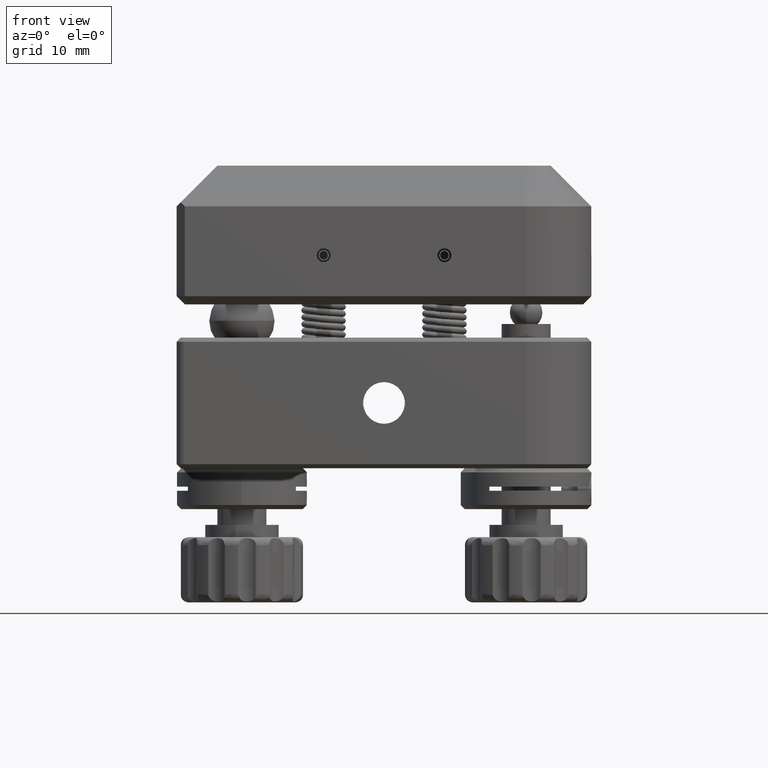
[diagram: clean part render]
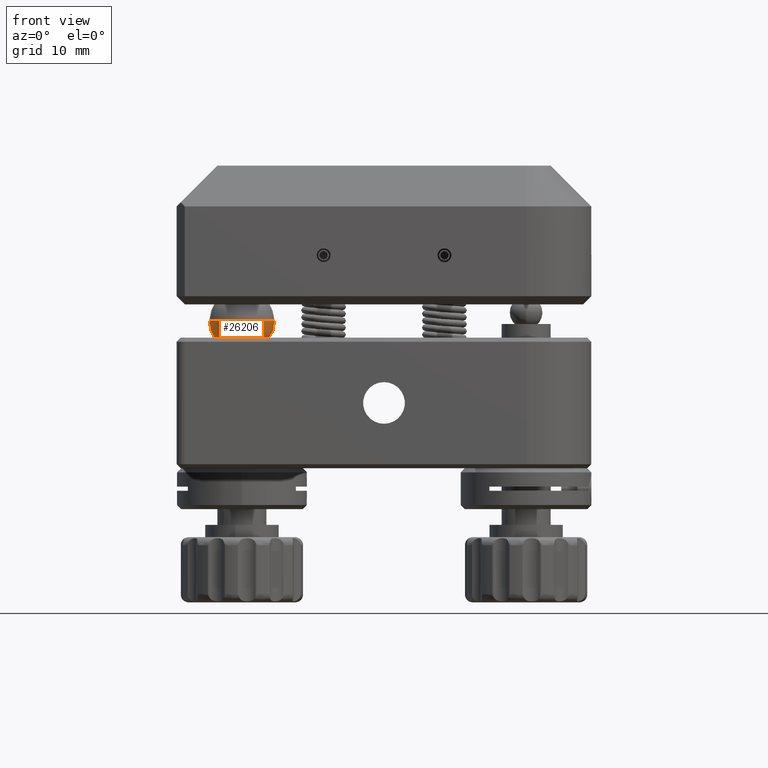
[diagram: same view with one face highlighted and labeled with its STEP entity id]
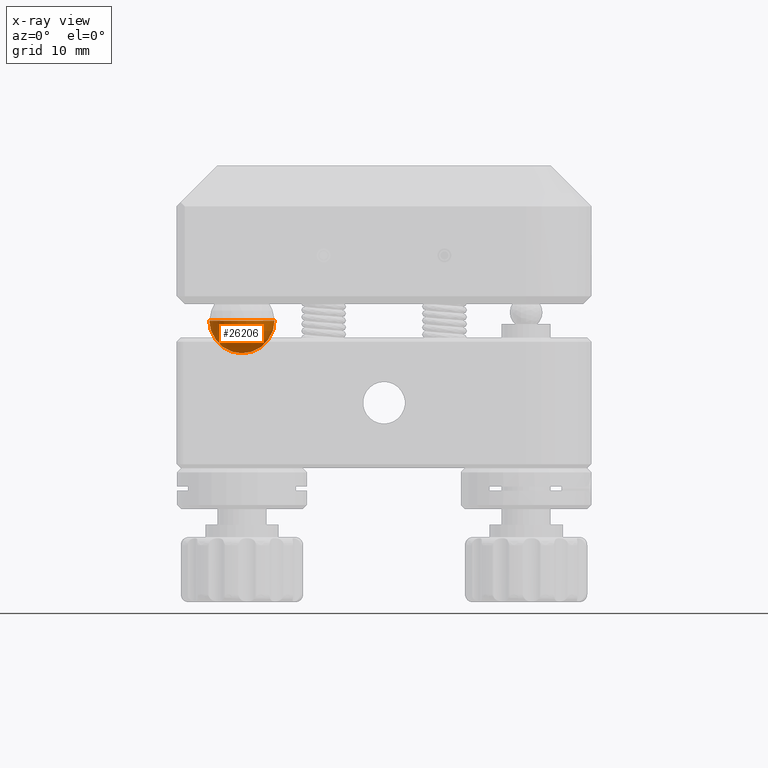
[diagram: x-ray of the same camera — body ghosted, the highlighted face saturated]
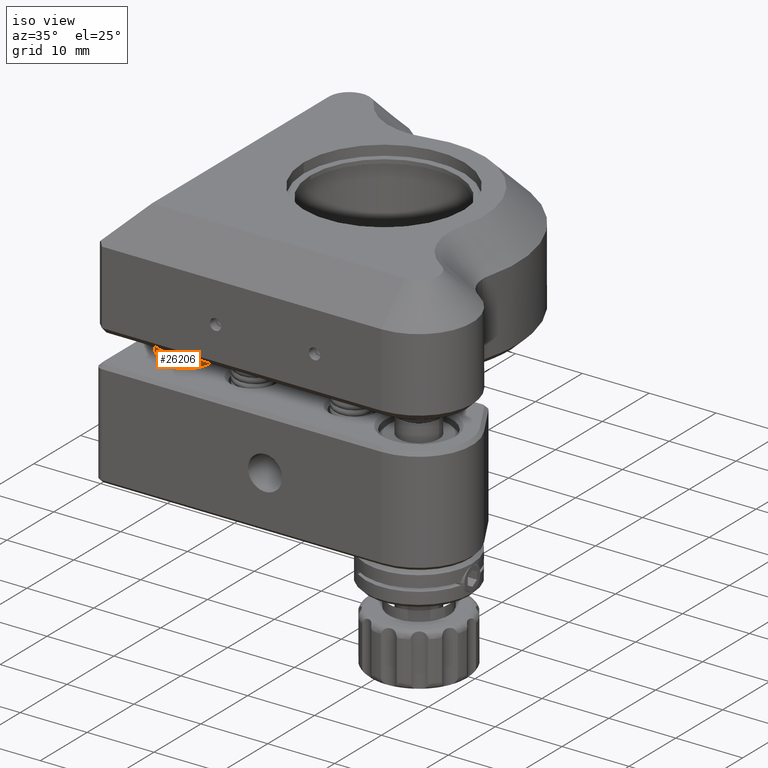
[diagram: same view with one face highlighted and labeled with its STEP entity id]
A machine part, front view. The second image highlights one B-rep face of the part: STEP entity #26206.
The next image is the same camera in x-ray: the body ghosted, the highlighted face saturated — about 0% of this face is hidden behind the body in this view.
A second angle (iso view) of the same face is appended — the face is thin or edge-on in the first view.
In plain terms, the highlighted spherical surface has radius 4 mm.
Its self-contained STEP definition (entity closure, byte-faithful):
#370 = DIRECTION ( 'NONE',  ( -9.369561891591502420E-16, -4.144134906478959242E-16, 1.000000000000000000 ) ) ;
#456 = AXIS2_PLACEMENT_3D ( 'NONE', #2564, #9783, #13660 ) ;
#1826 = DIRECTION ( 'NONE',  ( 3.035766082959412415E-15, 1.000000000000000000, 0.000000000000000000 ) ) ;
#2564 = CARTESIAN_POINT ( 'NONE',  ( -10.95866238262720138, -23.20469378309722330, 40.30000000000001137 ) ) ;
#3615 = ORIENTED_EDGE ( 'NONE', *, *, #26470, .F. ) ;
#6001 = CIRCLE ( 'NONE', #456, 4.000000000000000000 ) ;
#7186 = DIRECTION ( 'NONE',  ( 1.000000000000000000, 0.000000000000000000, 1.734723475976807094E-15 ) ) ;
#9428 = CARTESIAN_POINT ( 'NONE',  ( -6.958662382627201382, -23.20469378309721264, 40.30000000000001847 ) ) ;
#9783 = DIRECTION ( 'NONE',  ( 9.369561891591498475E-16, 5.368781705626312696E-16, -1.000000000000000000 ) ) ;
#10930 = AXIS2_PLACEMENT_3D ( 'NONE', #24738, #370, #7186 ) ;
#11777 = VERTEX_POINT ( 'NONE', #14184 ) ;
#12647 = FACE_OUTER_BOUND ( 'NONE', #25110, .T. ) ;
#13660 = DIRECTION ( 'NONE',  ( -1.000000000000000000, 0.000000000000000000, -1.734723475976807094E-15 ) ) ;
#14184 = CARTESIAN_POINT ( 'NONE',  ( -14.95866238262720138, -23.20469378309723396, 40.30000000000000426 ) ) ;
#14618 = CIRCLE ( 'NONE', #10930, 4.000000000000000000 ) ;
#15240 = CARTESIAN_POINT ( 'NONE',  ( -10.95866238262720138, -23.20469378309722330, 40.30000000000001137 ) ) ;
#17258 = DIRECTION ( 'NONE',  ( 9.369561891591514253E-16, -2.844379820268255484E-30, -1.000000000000000000 ) ) ;
#18608 = ORIENTED_EDGE ( 'NONE', *, *, #20699, .T. ) ;
#20699 = EDGE_CURVE ( 'NONE', #27000, #11777, #6001, .T. ) ;
#21445 = SPHERICAL_SURFACE ( 'NONE', #27009, 4.000000000000000000 ) ;
#24738 = CARTESIAN_POINT ( 'NONE',  ( -10.95866238262720138, -23.20469378309722330, 40.30000000000001137 ) ) ;
#25110 = EDGE_LOOP ( 'NONE', ( #3615, #18608 ) ) ;
#26206 = ADVANCED_FACE ( 'NONE', ( #12647 ), #21445, .T. ) ;
#26470 = EDGE_CURVE ( 'NONE', #27000, #11777, #14618, .T. ) ;
#27000 = VERTEX_POINT ( 'NONE', #9428 ) ;
#27009 = AXIS2_PLACEMENT_3D ( 'NONE', #15240, #17258, #1826 ) ;